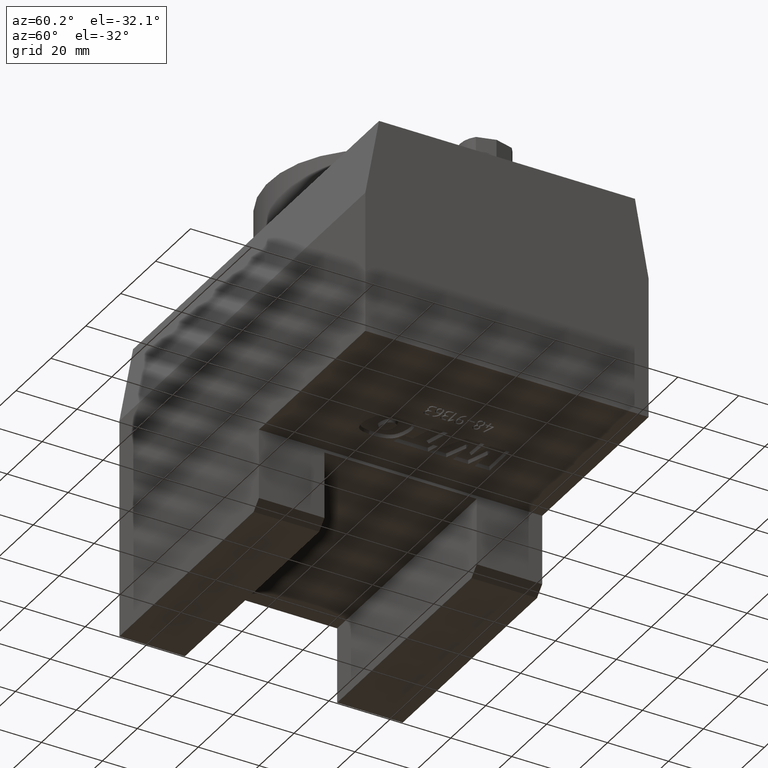
[diagram: clean part render]
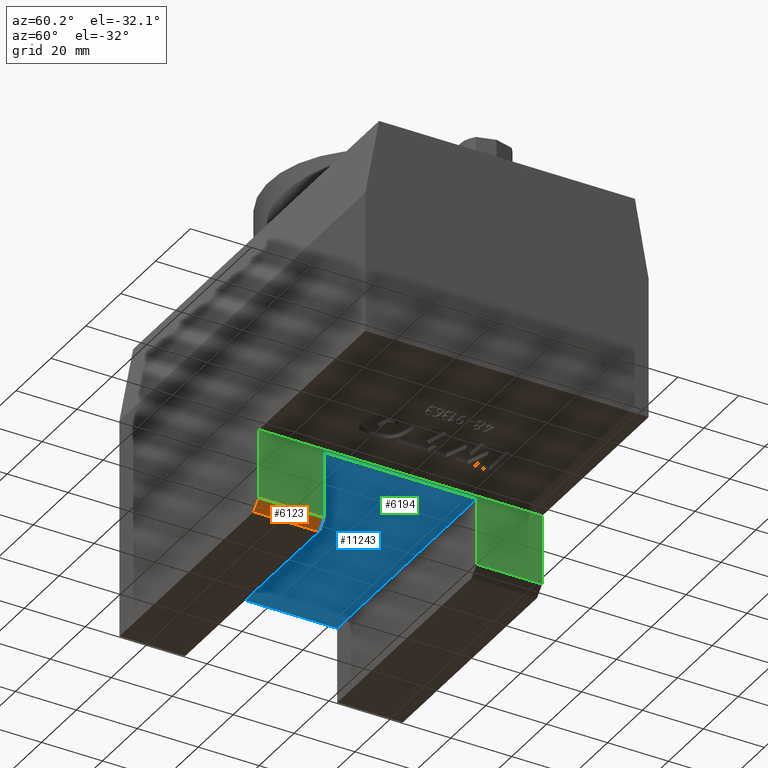
[diagram: same view with three faces highlighted in distinct colors, each labeled with its STEP entity id]
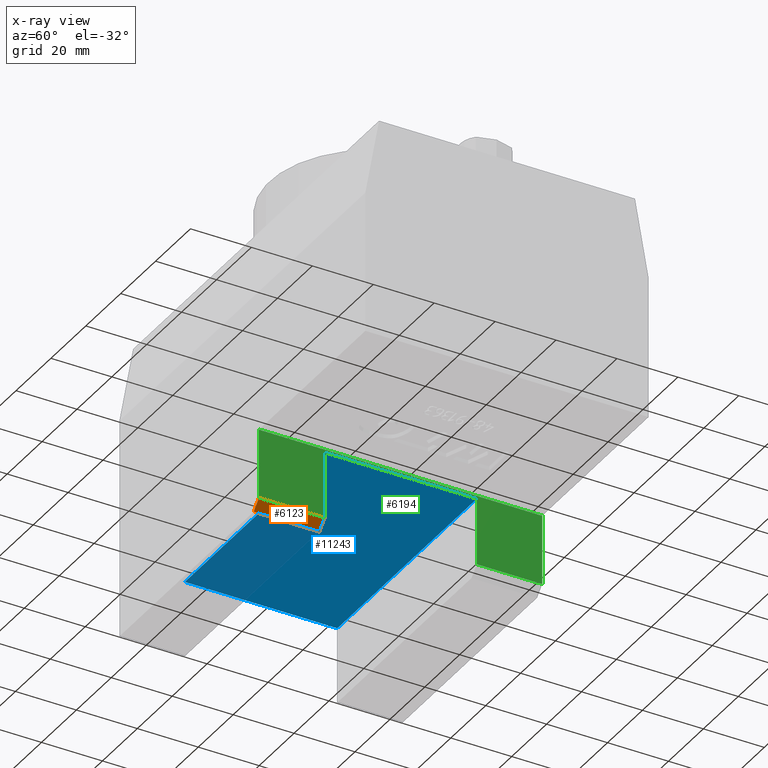
[diagram: x-ray of the same camera — body ghosted, the three highlighted faces saturated]
A machine part, auxiliary view with three faces highlighted in distinct colors.
The next image is the same camera in x-ray (body ghosted, the three faces saturated) — at least one of them is partly hidden behind the body in this view.
Their STEP definitions:

[orange] entity #6123 — the highlighted planar face has unit normal (0.7071, 0, -0.7071).
#2749 = PLANE('',#2750);
#2750 = AXIS2_PLACEMENT_3D('',#2751,#2752,#2753);
#2751 = CARTESIAN_POINT('',(-64.,-46.5,-98.));
#2752 = DIRECTION('',(0.E+000,1.,0.E+000));
#2753 = DIRECTION('',(-1.,0.E+000,0.E+000));
#2777 = PLANE('',#2778);
#2778 = AXIS2_PLACEMENT_3D('',#2779,#2780,#2781);
#2779 = CARTESIAN_POINT('',(16.,-86.27928892228,-72.));
#2780 = DIRECTION('',(1.,0.E+000,0.E+000));
#2781 = DIRECTION('',(0.E+000,0.E+000,1.));
#4301 = VERTEX_POINT('',#4302);
#4302 = CARTESIAN_POINT('',(16.,-25.,-95.));
#4311 = PLANE('',#4312);
#4312 = AXIS2_PLACEMENT_3D('',#4313,#4314,#4315);
#4313 = CARTESIAN_POINT('',(-64.,-25.,-73.));
#4314 = DIRECTION('',(0.E+000,-1.,0.E+000));
#4315 = DIRECTION('',(1.,0.E+000,0.E+000));
#4330 = EDGE_CURVE('',#4331,#4301,#4333,.T.);
#4331 = VERTEX_POINT('',#4332);
#4332 = CARTESIAN_POINT('',(13.,-25.,-98.));
#4333 = SURFACE_CURVE('',#4334,(#4338,#4345),.PCURVE_S1.);
#4334 = LINE('',#4335,#4336);
#4335 = CARTESIAN_POINT('',(-13.,-25.,-124.));
#4336 = VECTOR('',#4337,1.);
#4337 = DIRECTION('',(0.707106781187,0.E+000,0.707106781187));
#4338 = PCURVE('',#4311,#4339);
#4339 = DEFINITIONAL_REPRESENTATION('',(#4340),#4344);
#4340 = LINE('',#4341,#4342);
#4341 = CARTESIAN_POINT('',(51.,-51.));
#4342 = VECTOR('',#4343,1.);
#4343 = DIRECTION('',(0.707106781187,0.707106781187));
#4344 = ( GEOMETRIC_REPRESENTATION_CONTEXT(2) 
PARAMETRIC_REPRESENTATION_CONTEXT() REPRESENTATION_CONTEXT('2D SPACE',''
  ) );
#4345 = PCURVE('',#4346,#4351);
#4346 = PLANE('',#4347);
#4347 = AXIS2_PLACEMENT_3D('',#4348,#4349,#4350);
#4348 = CARTESIAN_POINT('',(16.,-86.27928892228,-95.));
#4349 = DIRECTION('',(0.707106781187,0.E+000,-0.707106781187));
#4350 = DIRECTION('',(0.707106781187,0.E+000,0.707106781187));
#4351 = DEFINITIONAL_REPRESENTATION('',(#4352),#4356);
#4352 = LINE('',#4353,#4354);
#4353 = CARTESIAN_POINT('',(-41.01219330882,-61.27928892228));
#4354 = VECTOR('',#4355,1.);
#4355 = DIRECTION('',(1.,0.E+000));
#4356 = ( GEOMETRIC_REPRESENTATION_CONTEXT(2) 
PARAMETRIC_REPRESENTATION_CONTEXT() REPRESENTATION_CONTEXT('2D SPACE',''
  ) );
#4374 = PLANE('',#4375);
#4375 = AXIS2_PLACEMENT_3D('',#4376,#4377,#4378);
#4376 = CARTESIAN_POINT('',(-64.,-25.,-98.));
#4377 = DIRECTION('',(0.E+000,0.E+000,1.));
#4378 = DIRECTION('',(-1.,0.E+000,0.E+000));
#6123 = ADVANCED_FACE('',(#6124),#4346,.T.);
#6124 = FACE_BOUND('',#6125,.T.);
#6125 = EDGE_LOOP('',(#6126,#6127,#6150,#6173));
#6126 = ORIENTED_EDGE('',*,*,#4330,.T.);
#6127 = ORIENTED_EDGE('',*,*,#6128,.F.);
#6128 = EDGE_CURVE('',#6129,#4301,#6131,.T.);
#6129 = VERTEX_POINT('',#6130);
#6130 = CARTESIAN_POINT('',(16.,-46.5,-95.));
#6131 = SURFACE_CURVE('',#6132,(#6136,#6143),.PCURVE_S1.);
#6132 = LINE('',#6133,#6134);
#6133 = CARTESIAN_POINT('',(16.,-86.27928892228,-95.));
#6134 = VECTOR('',#6135,1.);
#6135 = DIRECTION('',(0.E+000,1.,0.E+000));
#6136 = PCURVE('',#4346,#6137);
#6137 = DEFINITIONAL_REPRESENTATION('',(#6138),#6142);
#6138 = LINE('',#6139,#6140);
#6139 = CARTESIAN_POINT('',(0.E+000,0.E+000));
#6140 = VECTOR('',#6141,1.);
#6141 = DIRECTION('',(0.E+000,-1.));
#6142 = ( GEOMETRIC_REPRESENTATION_CONTEXT(2) 
PARAMETRIC_REPRESENTATION_CONTEXT() REPRESENTATION_CONTEXT('2D SPACE',''
  ) );
#6143 = PCURVE('',#2777,#6144);
#6144 = DEFINITIONAL_REPRESENTATION('',(#6145),#6149);
#6145 = LINE('',#6146,#6147);
#6146 = CARTESIAN_POINT('',(-23.,0.E+000));
#6147 = VECTOR('',#6148,1.);
#6148 = DIRECTION('',(0.E+000,-1.));
#6149 = ( GEOMETRIC_REPRESENTATION_CONTEXT(2) 
PARAMETRIC_REPRESENTATION_CONTEXT() REPRESENTATION_CONTEXT('2D SPACE',''
  ) );
#6150 = ORIENTED_EDGE('',*,*,#6151,.T.);
#6151 = EDGE_CURVE('',#6129,#6152,#6154,.T.);
#6152 = VERTEX_POINT('',#6153);
#6153 = CARTESIAN_POINT('',(13.,-46.5,-98.));
#6154 = SURFACE_CURVE('',#6155,(#6159,#6166),.PCURVE_S1.);
#6155 = LINE('',#6156,#6157);
#6156 = CARTESIAN_POINT('',(-25.5,-46.5,-136.5));
#6157 = VECTOR('',#6158,1.);
#6158 = DIRECTION('',(-0.707106781187,-0.E+000,-0.707106781187));
#6159 = PCURVE('',#4346,#6160);
#6160 = DEFINITIONAL_REPRESENTATION('',(#6161),#6165);
#6161 = LINE('',#6162,#6163);
#6162 = CARTESIAN_POINT('',(-58.68986283848,-39.77928892228));
#6163 = VECTOR('',#6164,1.);
#6164 = DIRECTION('',(-1.,0.E+000));
#6165 = ( GEOMETRIC_REPRESENTATION_CONTEXT(2) 
PARAMETRIC_REPRESENTATION_CONTEXT() REPRESENTATION_CONTEXT('2D SPACE',''
  ) );
#6166 = PCURVE('',#2749,#6167);
#6167 = DEFINITIONAL_REPRESENTATION('',(#6168),#6172);
#6168 = LINE('',#6169,#6170);
#6169 = CARTESIAN_POINT('',(-38.5,-38.5));
#6170 = VECTOR('',#6171,1.);
#6171 = DIRECTION('',(0.707106781187,-0.707106781187));
#6172 = ( GEOMETRIC_REPRESENTATION_CONTEXT(2) 
PARAMETRIC_REPRESENTATION_CONTEXT() REPRESENTATION_CONTEXT('2D SPACE',''
  ) );
#6173 = ORIENTED_EDGE('',*,*,#6174,.T.);
#6174 = EDGE_CURVE('',#6152,#4331,#6175,.T.);
#6175 = SURFACE_CURVE('',#6176,(#6180,#6187),.PCURVE_S1.);
#6176 = LINE('',#6177,#6178);
#6177 = CARTESIAN_POINT('',(13.,-86.27928892228,-98.));
#6178 = VECTOR('',#6179,1.);
#6179 = DIRECTION('',(0.E+000,1.,0.E+000));
#6180 = PCURVE('',#4346,#6181);
#6181 = DEFINITIONAL_REPRESENTATION('',(#6182),#6186);
#6182 = LINE('',#6183,#6184);
#6183 = CARTESIAN_POINT('',(-4.242640687119,-0.E+000));
#6184 = VECTOR('',#6185,1.);
#6185 = DIRECTION('',(0.E+000,-1.));
#6186 = ( GEOMETRIC_REPRESENTATION_CONTEXT(2) 
PARAMETRIC_REPRESENTATION_CONTEXT() REPRESENTATION_CONTEXT('2D SPACE',''
  ) );
#6187 = PCURVE('',#4374,#6188);
#6188 = DEFINITIONAL_REPRESENTATION('',(#6189),#6193);
#6189 = LINE('',#6190,#6191);
#6190 = CARTESIAN_POINT('',(-77.,61.279288922282));
#6191 = VECTOR('',#6192,1.);
#6192 = DIRECTION('',(0.E+000,-1.));
#6193 = ( GEOMETRIC_REPRESENTATION_CONTEXT(2) 
PARAMETRIC_REPRESENTATION_CONTEXT() REPRESENTATION_CONTEXT('2D SPACE',''
  ) );

[blue] entity #11243 — the highlighted planar face has unit normal (0, 0, 1).
#2777 = PLANE('',#2778);
#2778 = AXIS2_PLACEMENT_3D('',#2779,#2780,#2781);
#2779 = CARTESIAN_POINT('',(16.,-86.27928892228,-72.));
#2780 = DIRECTION('',(1.,0.E+000,0.E+000));
#2781 = DIRECTION('',(0.E+000,0.E+000,1.));
#4303 = VERTEX_POINT('',#4304);
#4304 = CARTESIAN_POINT('',(16.,-25.,-73.));
#4311 = PLANE('',#4312);
#4312 = AXIS2_PLACEMENT_3D('',#4313,#4314,#4315);
#4313 = CARTESIAN_POINT('',(-64.,-25.,-73.));
#4314 = DIRECTION('',(0.E+000,-1.,0.E+000));
#4315 = DIRECTION('',(1.,0.E+000,0.E+000));
#4387 = VERTEX_POINT('',#4388);
#4388 = CARTESIAN_POINT('',(-64.,-25.,-73.));
#4402 = PLANE('',#4403);
#4403 = AXIS2_PLACEMENT_3D('',#4404,#4405,#4406);
#4404 = CARTESIAN_POINT('',(-64.,-25.,-98.));
#4405 = DIRECTION('',(-1.,0.E+000,0.E+000));
#4406 = DIRECTION('',(0.E+000,0.E+000,-1.));
#4414 = EDGE_CURVE('',#4387,#4303,#4415,.T.);
#4415 = SURFACE_CURVE('',#4416,(#4420,#4427),.PCURVE_S1.);
#4416 = LINE('',#4417,#4418);
#4417 = CARTESIAN_POINT('',(-64.,-25.,-73.));
#4418 = VECTOR('',#4419,1.);
#4419 = DIRECTION('',(1.,0.E+000,0.E+000));
#4420 = PCURVE('',#4311,#4421);
#4421 = DEFINITIONAL_REPRESENTATION('',(#4422),#4426);
#4422 = LINE('',#4423,#4424);
#4423 = CARTESIAN_POINT('',(0.E+000,0.E+000));
#4424 = VECTOR('',#4425,1.);
#4425 = DIRECTION('',(1.,0.E+000));
#4426 = ( GEOMETRIC_REPRESENTATION_CONTEXT(2) 
PARAMETRIC_REPRESENTATION_CONTEXT() REPRESENTATION_CONTEXT('2D SPACE',''
  ) );
#4427 = PCURVE('',#4428,#4433);
#4428 = PLANE('',#4429);
#4429 = AXIS2_PLACEMENT_3D('',#4430,#4431,#4432);
#4430 = CARTESIAN_POINT('',(-64.,-25.,-73.));
#4431 = DIRECTION('',(0.E+000,0.E+000,1.));
#4432 = DIRECTION('',(-1.,0.E+000,0.E+000));
#4433 = DEFINITIONAL_REPRESENTATION('',(#4434),#4438);
#4434 = LINE('',#4435,#4436);
#4435 = CARTESIAN_POINT('',(0.E+000,0.E+000));
#4436 = VECTOR('',#4437,1.);
#4437 = DIRECTION('',(-1.,0.E+000));
#4438 = ( GEOMETRIC_REPRESENTATION_CONTEXT(2) 
PARAMETRIC_REPRESENTATION_CONTEXT() REPRESENTATION_CONTEXT('2D SPACE',''
  ) );
#6221 = EDGE_CURVE('',#4303,#6222,#6224,.T.);
#6222 = VERTEX_POINT('',#6223);
#6223 = CARTESIAN_POINT('',(16.,25.,-73.));
#6224 = SURFACE_CURVE('',#6225,(#6229,#6236),.PCURVE_S1.);
#6225 = LINE('',#6226,#6227);
#6226 = CARTESIAN_POINT('',(16.,-25.,-73.));
#6227 = VECTOR('',#6228,1.);
#6228 = DIRECTION('',(0.E+000,1.,0.E+000));
#6229 = PCURVE('',#2777,#6230);
#6230 = DEFINITIONAL_REPRESENTATION('',(#6231),#6235);
#6231 = LINE('',#6232,#6233);
#6232 = CARTESIAN_POINT('',(-1.,-61.27928892228));
#6233 = VECTOR('',#6234,1.);
#6234 = DIRECTION('',(0.E+000,-1.));
#6235 = ( GEOMETRIC_REPRESENTATION_CONTEXT(2) 
PARAMETRIC_REPRESENTATION_CONTEXT() REPRESENTATION_CONTEXT('2D SPACE',''
  ) );
#6236 = PCURVE('',#4428,#6237);
#6237 = DEFINITIONAL_REPRESENTATION('',(#6238),#6242);
#6238 = LINE('',#6239,#6240);
#6239 = CARTESIAN_POINT('',(-80.,0.E+000));
#6240 = VECTOR('',#6241,1.);
#6241 = DIRECTION('',(0.E+000,-1.));
#6242 = ( GEOMETRIC_REPRESENTATION_CONTEXT(2) 
PARAMETRIC_REPRESENTATION_CONTEXT() REPRESENTATION_CONTEXT('2D SPACE',''
  ) );
#6260 = PLANE('',#6261);
#6261 = AXIS2_PLACEMENT_3D('',#6262,#6263,#6264);
#6262 = CARTESIAN_POINT('',(-64.,25.,-73.));
#6263 = DIRECTION('',(0.E+000,1.,0.E+000));
#6264 = DIRECTION('',(-1.,0.E+000,0.E+000));
#11243 = ADVANCED_FACE('',(#11244),#4428,.F.);
#11244 = FACE_BOUND('',#11245,.T.);
#11245 = EDGE_LOOP('',(#11246,#11247,#11248,#11271));
#11246 = ORIENTED_EDGE('',*,*,#6221,.F.);
#11247 = ORIENTED_EDGE('',*,*,#4414,.F.);
#11248 = ORIENTED_EDGE('',*,*,#11249,.F.);
#11249 = EDGE_CURVE('',#11250,#4387,#11252,.T.);
#11250 = VERTEX_POINT('',#11251);
#11251 = CARTESIAN_POINT('',(-64.,25.,-73.));
#11252 = SURFACE_CURVE('',#11253,(#11257,#11264),.PCURVE_S1.);
#11253 = LINE('',#11254,#11255);
#11254 = CARTESIAN_POINT('',(-64.,-25.,-73.));
#11255 = VECTOR('',#11256,1.);
#11256 = DIRECTION('',(0.E+000,-1.,0.E+000));
#11257 = PCURVE('',#4428,#11258);
#11258 = DEFINITIONAL_REPRESENTATION('',(#11259),#11263);
#11259 = LINE('',#11260,#11261);
#11260 = CARTESIAN_POINT('',(0.E+000,0.E+000));
#11261 = VECTOR('',#11262,1.);
#11262 = DIRECTION('',(0.E+000,1.));
#11263 = ( GEOMETRIC_REPRESENTATION_CONTEXT(2) 
PARAMETRIC_REPRESENTATION_CONTEXT() REPRESENTATION_CONTEXT('2D SPACE',''
  ) );
#11264 = PCURVE('',#4402,#11265);
#11265 = DEFINITIONAL_REPRESENTATION('',(#11266),#11270);
#11266 = LINE('',#11267,#11268);
#11267 = CARTESIAN_POINT('',(-25.,0.E+000));
#11268 = VECTOR('',#11269,1.);
#11269 = DIRECTION('',(0.E+000,1.));
#11270 = ( GEOMETRIC_REPRESENTATION_CONTEXT(2) 
PARAMETRIC_REPRESENTATION_CONTEXT() REPRESENTATION_CONTEXT('2D SPACE',''
  ) );
#11271 = ORIENTED_EDGE('',*,*,#11272,.T.);
#11272 = EDGE_CURVE('',#11250,#6222,#11273,.T.);
#11273 = SURFACE_CURVE('',#11274,(#11278,#11285),.PCURVE_S1.);
#11274 = LINE('',#11275,#11276);
#11275 = CARTESIAN_POINT('',(-64.,25.,-73.));
#11276 = VECTOR('',#11277,1.);
#11277 = DIRECTION('',(1.,0.E+000,0.E+000));
#11278 = PCURVE('',#4428,#11279);
#11279 = DEFINITIONAL_REPRESENTATION('',(#11280),#11284);
#11280 = LINE('',#11281,#11282);
#11281 = CARTESIAN_POINT('',(0.E+000,-50.));
#11282 = VECTOR('',#11283,1.);
#11283 = DIRECTION('',(-1.,0.E+000));
#11284 = ( GEOMETRIC_REPRESENTATION_CONTEXT(2) 
PARAMETRIC_REPRESENTATION_CONTEXT() REPRESENTATION_CONTEXT('2D SPACE',''
  ) );
#11285 = PCURVE('',#6260,#11286);
#11286 = DEFINITIONAL_REPRESENTATION('',(#11287),#11291);
#11287 = LINE('',#11288,#11289);
#11288 = CARTESIAN_POINT('',(0.E+000,0.E+000));
#11289 = VECTOR('',#11290,1.);
#11290 = DIRECTION('',(-1.,0.E+000));
#11291 = ( GEOMETRIC_REPRESENTATION_CONTEXT(2) 
PARAMETRIC_REPRESENTATION_CONTEXT() REPRESENTATION_CONTEXT('2D SPACE',''
  ) );

[green] entity #6194 — the highlighted planar face has unit normal (1, 0, 0).
#71 = PLANE('',#72);
#72 = AXIS2_PLACEMENT_3D('',#73,#74,#75);
#73 = CARTESIAN_POINT('',(77.,-86.27928892228,-72.));
#74 = DIRECTION('',(0.E+000,0.E+000,-1.));
#75 = DIRECTION('',(1.,0.E+000,0.E+000));
#2734 = VERTEX_POINT('',#2735);
#2735 = CARTESIAN_POINT('',(16.,-46.5,-72.));
#2749 = PLANE('',#2750);
#2750 = AXIS2_PLACEMENT_3D('',#2751,#2752,#2753);
#2751 = CARTESIAN_POINT('',(-64.,-46.5,-98.));
#2752 = DIRECTION('',(0.E+000,1.,0.E+000));
#2753 = DIRECTION('',(-1.,0.E+000,0.E+000));
#2761 = EDGE_CURVE('',#2734,#2762,#2764,.T.);
#2762 = VERTEX_POINT('',#2763);
#2763 = CARTESIAN_POINT('',(16.,46.5,-72.));
#2764 = SURFACE_CURVE('',#2765,(#2769,#2776),.PCURVE_S1.);
#2765 = LINE('',#2766,#2767);
#2766 = CARTESIAN_POINT('',(16.,-86.27928892228,-72.));
#2767 = VECTOR('',#2768,1.);
#2768 = DIRECTION('',(0.E+000,1.,0.E+000));
#2769 = PCURVE('',#71,#2770);
#2770 = DEFINITIONAL_REPRESENTATION('',(#2771),#2775);
#2771 = LINE('',#2772,#2773);
#2772 = CARTESIAN_POINT('',(-61.,0.E+000));
#2773 = VECTOR('',#2774,1.);
#2774 = DIRECTION('',(0.E+000,-1.));
#2775 = ( GEOMETRIC_REPRESENTATION_CONTEXT(2) 
PARAMETRIC_REPRESENTATION_CONTEXT() REPRESENTATION_CONTEXT('2D SPACE',''
  ) );
#2776 = PCURVE('',#2777,#2782);
#2777 = PLANE('',#2778);
#2778 = AXIS2_PLACEMENT_3D('',#2779,#2780,#2781);
#2779 = CARTESIAN_POINT('',(16.,-86.27928892228,-72.));
#2780 = DIRECTION('',(1.,0.E+000,0.E+000));
#2781 = DIRECTION('',(0.E+000,0.E+000,1.));
#2782 = DEFINITIONAL_REPRESENTATION('',(#2783),#2787);
#2783 = LINE('',#2784,#2785);
#2784 = CARTESIAN_POINT('',(0.E+000,0.E+000));
#2785 = VECTOR('',#2786,1.);
#2786 = DIRECTION('',(0.E+000,-1.));
#2787 = ( GEOMETRIC_REPRESENTATION_CONTEXT(2) 
PARAMETRIC_REPRESENTATION_CONTEXT() REPRESENTATION_CONTEXT('2D SPACE',''
  ) );
#2805 = PLANE('',#2806);
#2806 = AXIS2_PLACEMENT_3D('',#2807,#2808,#2809);
#2807 = CARTESIAN_POINT('',(-64.,46.5,-25.52076818828));
#2808 = DIRECTION('',(0.E+000,-1.,0.E+000));
#2809 = DIRECTION('',(1.,0.E+000,0.E+000));
#4300 = EDGE_CURVE('',#4301,#4303,#4305,.T.);
#4301 = VERTEX_POINT('',#4302);
#4302 = CARTESIAN_POINT('',(16.,-25.,-95.));
#4303 = VERTEX_POINT('',#4304);
#4304 = CARTESIAN_POINT('',(16.,-25.,-73.));
#4305 = SURFACE_CURVE('',#4306,(#4310,#4322),.PCURVE_S1.);
#4306 = LINE('',#4307,#4308);
#4307 = CARTESIAN_POINT('',(16.,-25.,-73.));
#4308 = VECTOR('',#4309,1.);
#4309 = DIRECTION('',(0.E+000,0.E+000,1.));
#4310 = PCURVE('',#4311,#4316);
#4311 = PLANE('',#4312);
#4312 = AXIS2_PLACEMENT_3D('',#4313,#4314,#4315);
#4313 = CARTESIAN_POINT('',(-64.,-25.,-73.));
#4314 = DIRECTION('',(0.E+000,-1.,0.E+000));
#4315 = DIRECTION('',(1.,0.E+000,0.E+000));
#4316 = DEFINITIONAL_REPRESENTATION('',(#4317),#4321);
#4317 = LINE('',#4318,#4319);
#4318 = CARTESIAN_POINT('',(80.,0.E+000));
#4319 = VECTOR('',#4320,1.);
#4320 = DIRECTION('',(0.E+000,1.));
#4321 = ( GEOMETRIC_REPRESENTATION_CONTEXT(2) 
PARAMETRIC_REPRESENTATION_CONTEXT() REPRESENTATION_CONTEXT('2D SPACE',''
  ) );
#4322 = PCURVE('',#2777,#4323);
#4323 = DEFINITIONAL_REPRESENTATION('',(#4324),#4328);
#4324 = LINE('',#4325,#4326);
#4325 = CARTESIAN_POINT('',(-1.,-61.27928892228));
#4326 = VECTOR('',#4327,1.);
#4327 = DIRECTION('',(1.,0.E+000));
#4328 = ( GEOMETRIC_REPRESENTATION_CONTEXT(2) 
PARAMETRIC_REPRESENTATION_CONTEXT() REPRESENTATION_CONTEXT('2D SPACE',''
  ) );
#4346 = PLANE('',#4347);
#4347 = AXIS2_PLACEMENT_3D('',#4348,#4349,#4350);
#4348 = CARTESIAN_POINT('',(16.,-86.27928892228,-95.));
#4349 = DIRECTION('',(0.707106781187,0.E+000,-0.707106781187));
#4350 = DIRECTION('',(0.707106781187,0.E+000,0.707106781187));
#4428 = PLANE('',#4429);
#4429 = AXIS2_PLACEMENT_3D('',#4430,#4431,#4432);
#4430 = CARTESIAN_POINT('',(-64.,-25.,-73.));
#4431 = DIRECTION('',(0.E+000,0.E+000,1.));
#4432 = DIRECTION('',(-1.,0.E+000,0.E+000));
#6128 = EDGE_CURVE('',#6129,#4301,#6131,.T.);
#6129 = VERTEX_POINT('',#6130);
#6130 = CARTESIAN_POINT('',(16.,-46.5,-95.));
#6131 = SURFACE_CURVE('',#6132,(#6136,#6143),.PCURVE_S1.);
#6132 = LINE('',#6133,#6134);
#6133 = CARTESIAN_POINT('',(16.,-86.27928892228,-95.));
#6134 = VECTOR('',#6135,1.);
#6135 = DIRECTION('',(0.E+000,1.,0.E+000));
#6136 = PCURVE('',#4346,#6137);
#6137 = DEFINITIONAL_REPRESENTATION('',(#6138),#6142);
#6138 = LINE('',#6139,#6140);
#6139 = CARTESIAN_POINT('',(0.E+000,0.E+000));
#6140 = VECTOR('',#6141,1.);
#6141 = DIRECTION('',(0.E+000,-1.));
#6142 = ( GEOMETRIC_REPRESENTATION_CONTEXT(2) 
PARAMETRIC_REPRESENTATION_CONTEXT() REPRESENTATION_CONTEXT('2D SPACE',''
  ) );
#6143 = PCURVE('',#2777,#6144);
#6144 = DEFINITIONAL_REPRESENTATION('',(#6145),#6149);
#6145 = LINE('',#6146,#6147);
#6146 = CARTESIAN_POINT('',(-23.,0.E+000));
#6147 = VECTOR('',#6148,1.);
#6148 = DIRECTION('',(0.E+000,-1.));
#6149 = ( GEOMETRIC_REPRESENTATION_CONTEXT(2) 
PARAMETRIC_REPRESENTATION_CONTEXT() REPRESENTATION_CONTEXT('2D SPACE',''
  ) );
#6194 = ADVANCED_FACE('',(#6195),#2777,.T.);
#6195 = FACE_BOUND('',#6196,.T.);
#6196 = EDGE_LOOP('',(#6197,#6218,#6219,#6220,#6243,#6271,#6299,#6320));
#6197 = ORIENTED_EDGE('',*,*,#6198,.T.);
#6198 = EDGE_CURVE('',#2734,#6129,#6199,.T.);
#6199 = SURFACE_CURVE('',#6200,(#6204,#6211),.PCURVE_S1.);
#6200 = LINE('',#6201,#6202);
#6201 = CARTESIAN_POINT('',(16.,-46.5,-98.));
#6202 = VECTOR('',#6203,1.);
#6203 = DIRECTION('',(0.E+000,0.E+000,-1.));
#6204 = PCURVE('',#2777,#6205);
#6205 = DEFINITIONAL_REPRESENTATION('',(#6206),#6210);
#6206 = LINE('',#6207,#6208);
#6207 = CARTESIAN_POINT('',(-26.,-39.77928892228));
#6208 = VECTOR('',#6209,1.);
#6209 = DIRECTION('',(-1.,0.E+000));
#6210 = ( GEOMETRIC_REPRESENTATION_CONTEXT(2) 
PARAMETRIC_REPRESENTATION_CONTEXT() REPRESENTATION_CONTEXT('2D SPACE',''
  ) );
#6211 = PCURVE('',#2749,#6212);
#6212 = DEFINITIONAL_REPRESENTATION('',(#6213),#6217);
#6213 = LINE('',#6214,#6215);
#6214 = CARTESIAN_POINT('',(-80.,0.E+000));
#6215 = VECTOR('',#6216,1.);
#6216 = DIRECTION('',(0.E+000,-1.));
#6217 = ( GEOMETRIC_REPRESENTATION_CONTEXT(2) 
PARAMETRIC_REPRESENTATION_CONTEXT() REPRESENTATION_CONTEXT('2D SPACE',''
  ) );
#6218 = ORIENTED_EDGE('',*,*,#6128,.T.);
#6219 = ORIENTED_EDGE('',*,*,#4300,.T.);
#6220 = ORIENTED_EDGE('',*,*,#6221,.T.);
#6221 = EDGE_CURVE('',#4303,#6222,#6224,.T.);
#6222 = VERTEX_POINT('',#6223);
#6223 = CARTESIAN_POINT('',(16.,25.,-73.));
#6224 = SURFACE_CURVE('',#6225,(#6229,#6236),.PCURVE_S1.);
#6225 = LINE('',#6226,#6227);
#6226 = CARTESIAN_POINT('',(16.,-25.,-73.));
#6227 = VECTOR('',#6228,1.);
#6228 = DIRECTION('',(0.E+000,1.,0.E+000));
#6229 = PCURVE('',#2777,#6230);
#6230 = DEFINITIONAL_REPRESENTATION('',(#6231),#6235);
#6231 = LINE('',#6232,#6233);
#6232 = CARTESIAN_POINT('',(-1.,-61.27928892228));
#6233 = VECTOR('',#6234,1.);
#6234 = DIRECTION('',(0.E+000,-1.));
#6235 = ( GEOMETRIC_REPRESENTATION_CONTEXT(2) 
PARAMETRIC_REPRESENTATION_CONTEXT() REPRESENTATION_CONTEXT('2D SPACE',''
  ) );
#6236 = PCURVE('',#4428,#6237);
#6237 = DEFINITIONAL_REPRESENTATION('',(#6238),#6242);
#6238 = LINE('',#6239,#6240);
#6239 = CARTESIAN_POINT('',(-80.,0.E+000));
#6240 = VECTOR('',#6241,1.);
#6241 = DIRECTION('',(0.E+000,-1.));
#6242 = ( GEOMETRIC_REPRESENTATION_CONTEXT(2) 
PARAMETRIC_REPRESENTATION_CONTEXT() REPRESENTATION_CONTEXT('2D SPACE',''
  ) );
#6243 = ORIENTED_EDGE('',*,*,#6244,.T.);
#6244 = EDGE_CURVE('',#6222,#6245,#6247,.T.);
#6245 = VERTEX_POINT('',#6246);
#6246 = CARTESIAN_POINT('',(16.,25.,-95.));
#6247 = SURFACE_CURVE('',#6248,(#6252,#6259),.PCURVE_S1.);
#6248 = LINE('',#6249,#6250);
#6249 = CARTESIAN_POINT('',(16.,25.,-73.));
#6250 = VECTOR('',#6251,1.);
#6251 = DIRECTION('',(0.E+000,0.E+000,-1.));
#6252 = PCURVE('',#2777,#6253);
#6253 = DEFINITIONAL_REPRESENTATION('',(#6254),#6258);
#6254 = LINE('',#6255,#6256);
#6255 = CARTESIAN_POINT('',(-1.,-111.2792889222));
#6256 = VECTOR('',#6257,1.);
#6257 = DIRECTION('',(-1.,0.E+000));
#6258 = ( GEOMETRIC_REPRESENTATION_CONTEXT(2) 
PARAMETRIC_REPRESENTATION_CONTEXT() REPRESENTATION_CONTEXT('2D SPACE',''
  ) );
#6259 = PCURVE('',#6260,#6265);
#6260 = PLANE('',#6261);
#6261 = AXIS2_PLACEMENT_3D('',#6262,#6263,#6264);
#6262 = CARTESIAN_POINT('',(-64.,25.,-73.));
#6263 = DIRECTION('',(0.E+000,1.,0.E+000));
#6264 = DIRECTION('',(-1.,0.E+000,0.E+000));
#6265 = DEFINITIONAL_REPRESENTATION('',(#6266),#6270);
#6266 = LINE('',#6267,#6268);
#6267 = CARTESIAN_POINT('',(-80.,0.E+000));
#6268 = VECTOR('',#6269,1.);
#6269 = DIRECTION('',(0.E+000,-1.));
#6270 = ( GEOMETRIC_REPRESENTATION_CONTEXT(2) 
PARAMETRIC_REPRESENTATION_CONTEXT() REPRESENTATION_CONTEXT('2D SPACE',''
  ) );
#6271 = ORIENTED_EDGE('',*,*,#6272,.T.);
#6272 = EDGE_CURVE('',#6245,#6273,#6275,.T.);
#6273 = VERTEX_POINT('',#6274);
#6274 = CARTESIAN_POINT('',(16.,46.5,-95.));
#6275 = SURFACE_CURVE('',#6276,(#6280,#6287),.PCURVE_S1.);
#6276 = LINE('',#6277,#6278);
#6277 = CARTESIAN_POINT('',(16.,-86.27928892228,-95.));
#6278 = VECTOR('',#6279,1.);
#6279 = DIRECTION('',(0.E+000,1.,0.E+000));
#6280 = PCURVE('',#2777,#6281);
#6281 = DEFINITIONAL_REPRESENTATION('',(#6282),#6286);
#6282 = LINE('',#6283,#6284);
#6283 = CARTESIAN_POINT('',(-23.,0.E+000));
#6284 = VECTOR('',#6285,1.);
#6285 = DIRECTION('',(0.E+000,-1.));
#6286 = ( GEOMETRIC_REPRESENTATION_CONTEXT(2) 
PARAMETRIC_REPRESENTATION_CONTEXT() REPRESENTATION_CONTEXT('2D SPACE',''
  ) );
#6287 = PCURVE('',#6288,#6293);
#6288 = PLANE('',#6289);
#6289 = AXIS2_PLACEMENT_3D('',#6290,#6291,#6292);
#6290 = CARTESIAN_POINT('',(16.,-86.27928892228,-95.));
#6291 = DIRECTION('',(0.707106781187,0.E+000,-0.707106781187));
#6292 = DIRECTION('',(0.707106781187,0.E+000,0.707106781187));
#6293 = DEFINITIONAL_REPRESENTATION('',(#6294),#6298);
#6294 = LINE('',#6295,#6296);
#6295 = CARTESIAN_POINT('',(0.E+000,0.E+000));
#6296 = VECTOR('',#6297,1.);
#6297 = DIRECTION('',(0.E+000,-1.));
#6298 = ( GEOMETRIC_REPRESENTATION_CONTEXT(2) 
PARAMETRIC_REPRESENTATION_CONTEXT() REPRESENTATION_CONTEXT('2D SPACE',''
  ) );
#6299 = ORIENTED_EDGE('',*,*,#6300,.T.);
#6300 = EDGE_CURVE('',#6273,#2762,#6301,.T.);
#6301 = SURFACE_CURVE('',#6302,(#6306,#6313),.PCURVE_S1.);
#6302 = LINE('',#6303,#6304);
#6303 = CARTESIAN_POINT('',(16.,46.5,-25.52076818828));
#6304 = VECTOR('',#6305,1.);
#6305 = DIRECTION('',(0.E+000,0.E+000,1.));
#6306 = PCURVE('',#2777,#6307);
#6307 = DEFINITIONAL_REPRESENTATION('',(#6308),#6312);
#6308 = LINE('',#6309,#6310);
#6309 = CARTESIAN_POINT('',(46.47923181172,-132.7792889222));
#6310 = VECTOR('',#6311,1.);
#6311 = DIRECTION('',(1.,0.E+000));
#6312 = ( GEOMETRIC_REPRESENTATION_CONTEXT(2) 
PARAMETRIC_REPRESENTATION_CONTEXT() REPRESENTATION_CONTEXT('2D SPACE',''
  ) );
#6313 = PCURVE('',#2805,#6314);
#6314 = DEFINITIONAL_REPRESENTATION('',(#6315),#6319);
#6315 = LINE('',#6316,#6317);
#6316 = CARTESIAN_POINT('',(80.,0.E+000));
#6317 = VECTOR('',#6318,1.);
#6318 = DIRECTION('',(0.E+000,1.));
#6319 = ( GEOMETRIC_REPRESENTATION_CONTEXT(2) 
PARAMETRIC_REPRESENTATION_CONTEXT() REPRESENTATION_CONTEXT('2D SPACE',''
  ) );
#6320 = ORIENTED_EDGE('',*,*,#2761,.F.);